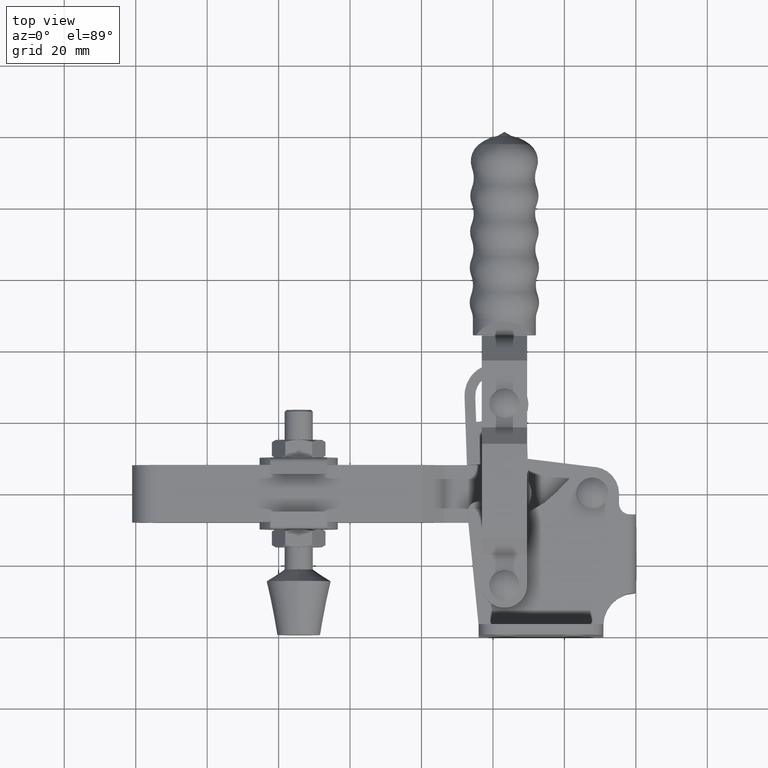
[diagram: clean part render]
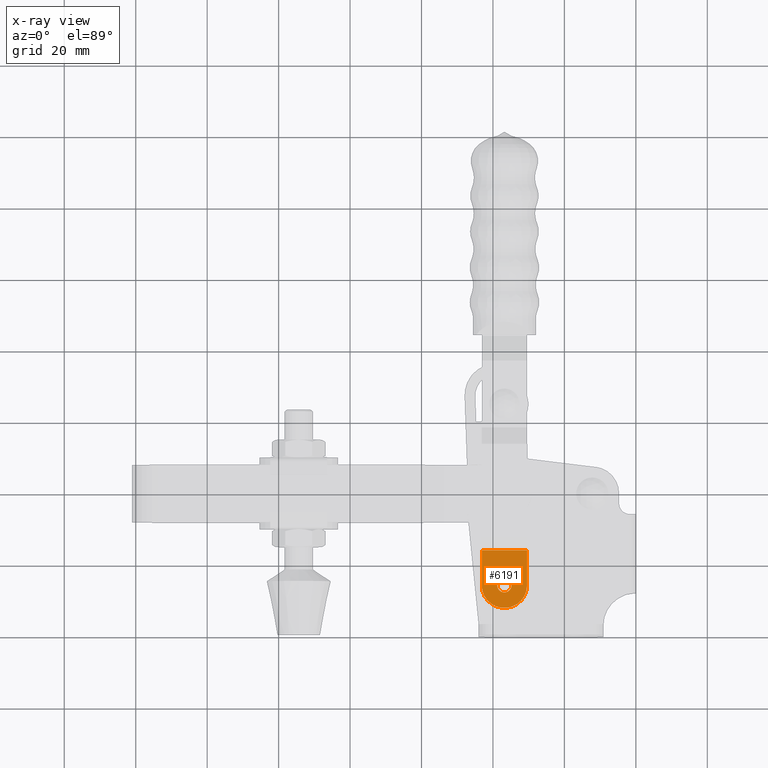
[diagram: x-ray — body ghosted, one internal face saturated and labeled with its STEP entity id]
A machine part, top view, then the same camera in x-ray: the body is ghosted and one INTERNAL B-rep face — a face not visible from any outside direction — is saturated and labeled: STEP entity #6191.
In plain terms, the highlighted planar face has unit normal (-0, -0, -1).
Its self-contained STEP definition (entity closure, byte-faithful):
#268 = ORIENTED_EDGE ( 'NONE', *, *, #8875, .F. ) ;
#474 = CARTESIAN_POINT ( 'NONE',  ( -36.80000000000023200, 14.09999999999972400, 6.000000000000003600 ) ) ;
#879 = AXIS2_PLACEMENT_3D ( 'NONE', #474, #6957, #1395 ) ;
#1258 = CARTESIAN_POINT ( 'NONE',  ( -43.15000000000017600, 14.09999999999966700, 6.000000000000003600 ) ) ;
#1367 = CARTESIAN_POINT ( 'NONE',  ( -36.80000000000023200, 14.09999999999972400, 6.000000000000003600 ) ) ;
#1395 = DIRECTION ( 'NONE',  ( 0.0000000000000000000, 1.000000000000000000, 0.0000000000000000000 ) ) ;
#1454 = ORIENTED_EDGE ( 'NONE', *, *, #11013, .T. ) ;
#1675 = CARTESIAN_POINT ( 'NONE',  ( -30.45000000000021200, 23.91073911505412000, 5.999999999999999100 ) ) ;
#1815 = CIRCLE ( 'NONE', #7811, 6.349999999999994300 ) ;
#1846 = CIRCLE ( 'NONE', #879, 2.000000000000001800 ) ;
#2109 = VERTEX_POINT ( 'NONE', #5659 ) ;
#2150 = CIRCLE ( 'NONE', #7396, 2.000000000000001800 ) ;
#2292 = DIRECTION ( 'NONE',  ( 0.0000000000000000000, 1.000000000000000000, 0.0000000000000000000 ) ) ;
#2366 = LINE ( 'NONE', #10434, #11941 ) ;
#3052 = EDGE_CURVE ( 'NONE', #11237, #8891, #10031, .T. ) ;
#3087 = DIRECTION ( 'NONE',  ( -1.000000000000000000, 6.037836059286573500E-035, 7.000092359566945500E-019 ) ) ;
#3372 = CARTESIAN_POINT ( 'NONE',  ( -30.45000000000021200, 14.09999999999966700, 6.000000000000003600 ) ) ;
#3550 = CARTESIAN_POINT ( 'NONE',  ( -36.80000000000020300, 14.09999999999966700, 6.000000000000003600 ) ) ;
#3718 = DIRECTION ( 'NONE',  ( -1.000000000000000000, 6.037836059286574500E-035, 7.000092359566945500E-019 ) ) ;
#4470 = DIRECTION ( 'NONE',  ( -1.000000000000000000, 0.0000000000000000000, 0.0000000000000000000 ) ) ;
#4683 = PLANE ( 'NONE',  #7478 ) ;
#5022 = ORIENTED_EDGE ( 'NONE', *, *, #8293, .F. ) ;
#5091 = FACE_BOUND ( 'NONE', #11491, .T. ) ;
#5489 = EDGE_CURVE ( 'NONE', #8891, #5535, #2366, .T. ) ;
#5535 = VERTEX_POINT ( 'NONE', #1258 ) ;
#5659 = CARTESIAN_POINT ( 'NONE',  ( -38.80000000000023200, 14.09999999999972400, 6.000000000000003600 ) ) ;
#5836 = CARTESIAN_POINT ( 'NONE',  ( -34.80000000000022500, 14.09999999999972400, 6.000000000000003600 ) ) ;
#5901 = LINE ( 'NONE', #8767, #8103 ) ;
#6191 = ADVANCED_FACE ( 'NONE', ( #7290, #5091 ), #4683, .T. ) ;
#6424 = ORIENTED_EDGE ( 'NONE', *, *, #5489, .F. ) ;
#6460 = EDGE_LOOP ( 'NONE', ( #9022, #6424, #9919, #1454 ) ) ;
#6515 = CARTESIAN_POINT ( 'NONE',  ( -30.45000000000021200, 23.91073911505412000, 5.999999999999999100 ) ) ;
#6957 = DIRECTION ( 'NONE',  ( -7.000092359567007100E-019, -1.120141832160471200E-017, -1.000000000000000000 ) ) ;
#6999 = CARTESIAN_POINT ( 'NONE',  ( -43.15000000000023300, 23.91073911505412000, 5.999999999999999100 ) ) ;
#7290 = FACE_OUTER_BOUND ( 'NONE', #6460, .T. ) ;
#7396 = AXIS2_PLACEMENT_3D ( 'NONE', #1367, #7876, #2292 ) ;
#7478 = AXIS2_PLACEMENT_3D ( 'NONE', #6515, #10235, #3718 ) ;
#7811 = AXIS2_PLACEMENT_3D ( 'NONE', #3550, #10067, #4470 ) ;
#7850 = VECTOR ( 'NONE', #3087, 1000.000000000000000 ) ;
#7876 = DIRECTION ( 'NONE',  ( -7.000092359567007100E-019, -1.120141832160471200E-017, -1.000000000000000000 ) ) ;
#8103 = VECTOR ( 'NONE', #9738, 1000.000000000000000 ) ;
#8293 = EDGE_CURVE ( 'NONE', #8826, #2109, #2150, .T. ) ;
#8600 = DIRECTION ( 'NONE',  ( 6.037836059286575600E-035, -1.000000000000000000, 1.120141832160472100E-017 ) ) ;
#8767 = CARTESIAN_POINT ( 'NONE',  ( -30.45000000000021200, 23.91073911505412000, 5.999999999999999100 ) ) ;
#8826 = VERTEX_POINT ( 'NONE', #5836 ) ;
#8875 = EDGE_CURVE ( 'NONE', #2109, #8826, #1846, .T. ) ;
#8891 = VERTEX_POINT ( 'NONE', #6999 ) ;
#9022 = ORIENTED_EDGE ( 'NONE', *, *, #11815, .F. ) ;
#9598 = CARTESIAN_POINT ( 'NONE',  ( -30.45000000000021200, 23.91073911505412000, 5.999999999999999100 ) ) ;
#9738 = DIRECTION ( 'NONE',  ( 6.037836059286575600E-035, -1.000000000000000000, 1.120141832160472100E-017 ) ) ;
#9919 = ORIENTED_EDGE ( 'NONE', *, *, #3052, .F. ) ;
#10031 = LINE ( 'NONE', #9598, #7850 ) ;
#10067 = DIRECTION ( 'NONE',  ( 7.000092359567007100E-019, 1.120141832160471200E-017, 1.000000000000000000 ) ) ;
#10235 = DIRECTION ( 'NONE',  ( -7.000092359566945500E-019, -1.120141832160471200E-017, -1.000000000000000000 ) ) ;
#10434 = CARTESIAN_POINT ( 'NONE',  ( -43.15000000000023300, 23.91073911505412000, 5.999999999999999100 ) ) ;
#11013 = EDGE_CURVE ( 'NONE', #11237, #11139, #5901, .T. ) ;
#11139 = VERTEX_POINT ( 'NONE', #3372 ) ;
#11237 = VERTEX_POINT ( 'NONE', #1675 ) ;
#11491 = EDGE_LOOP ( 'NONE', ( #268, #5022 ) ) ;
#11815 = EDGE_CURVE ( 'NONE', #5535, #11139, #1815, .T. ) ;
#11941 = VECTOR ( 'NONE', #8600, 1000.000000000000000 ) ;